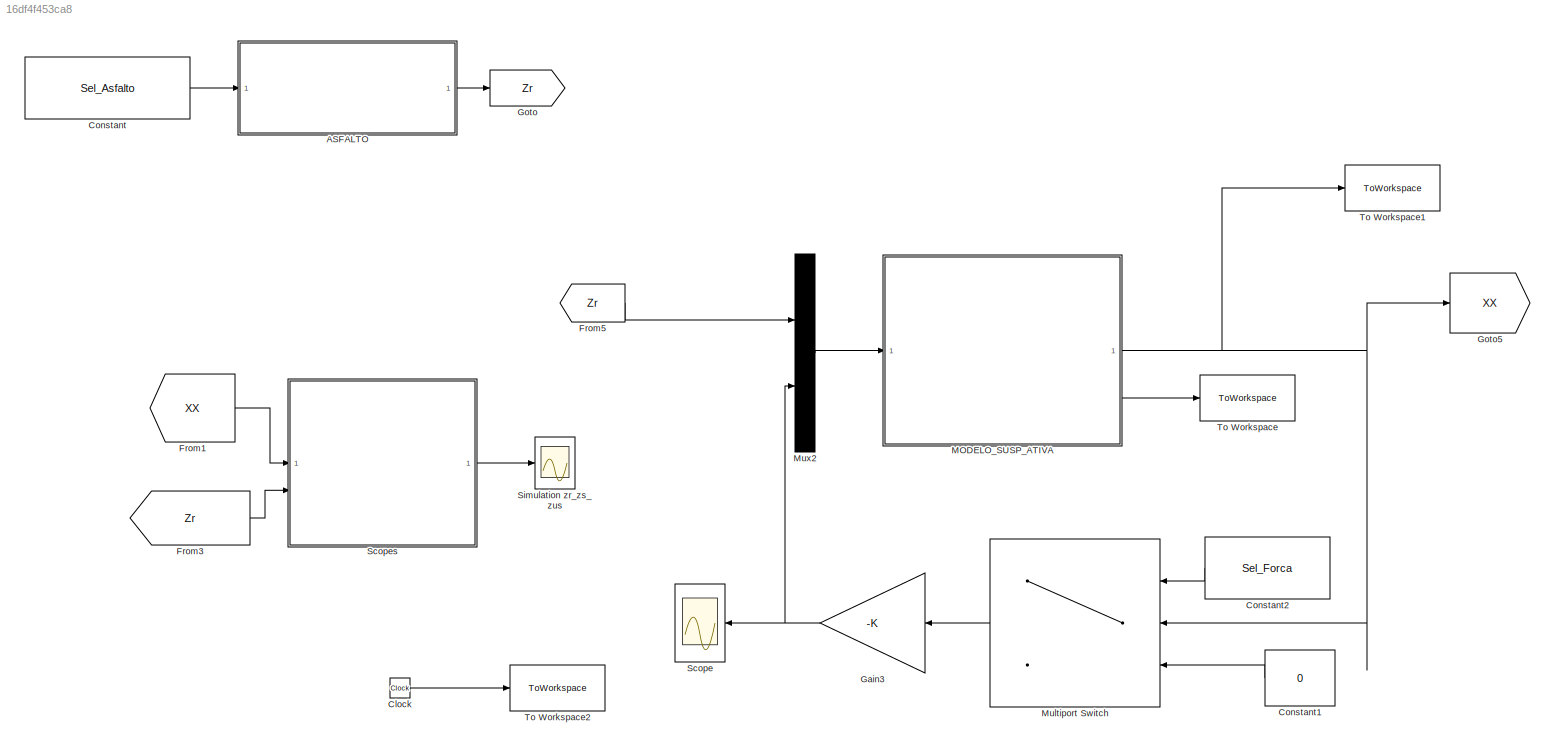
MODEL slx_16df4f453ca8
KIND model
CONFIG AbsTol = auto
CONFIG EnableMultiTasking = on
CONFIG FixedStep = auto
CONFIG MaxStep = auto
CONFIG MinStep = auto
CONFIG RelTol = 1e-3
CONFIG SampleTimeConstraint = Unconstrained
CONFIG SolverName = ode45
CONFIG StartTime = 0.0
CONFIG StopTime = 10.0
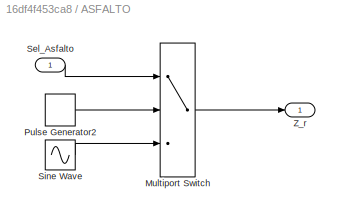
BLOCK [SubSystem] ASFALTO
BLOCK [MultiPortSwitch] ASFALTO/Multiport Switch
  DiagnosticForDefault = None
  InputSameDT = off
  Inputs = 2
  SaturateOnIntegerOverflow = off
BLOCK [DiscretePulseGenerator] ASFALTO/Pulse Generator2
  Amplitude = 0.02
  Period = 3
  PhaseDelay = .1
  PulseType = Time based
  PulseWidth = 50
BLOCK [Inport] ASFALTO/Sel_Asfalto
BLOCK [Sin] ASFALTO/Sine Wave
  Amplitude = 0.02
  Frequency = pi/0.3
  SampleTime = 0
BLOCK [Outport] ASFALTO/Z_r
BLOCK [Clock] Clock
BLOCK [Constant] Constant
  Value = Sel_Asfalto
BLOCK [Constant] Constant1
  NameLocation = top
  Value = 0
BLOCK [Constant] Constant2
  NameLocation = top
  Value = Sel_Forca
BLOCK [From] From1
  CloseFcn = tagdialog Close
  GotoTag = XX
BLOCK [From] From3
  CloseFcn = tagdialog Close
  GotoTag = Zr
BLOCK [From] From5
  GotoTag = Zr
BLOCK [Gain] Gain3
  Gain = -K
  Multiplication = Matrix(K*u) (u vector)
  NameLocation = top
BLOCK [Goto] Goto
  GotoTag = Zr
BLOCK [Goto] Goto5
  GotoTag = XX
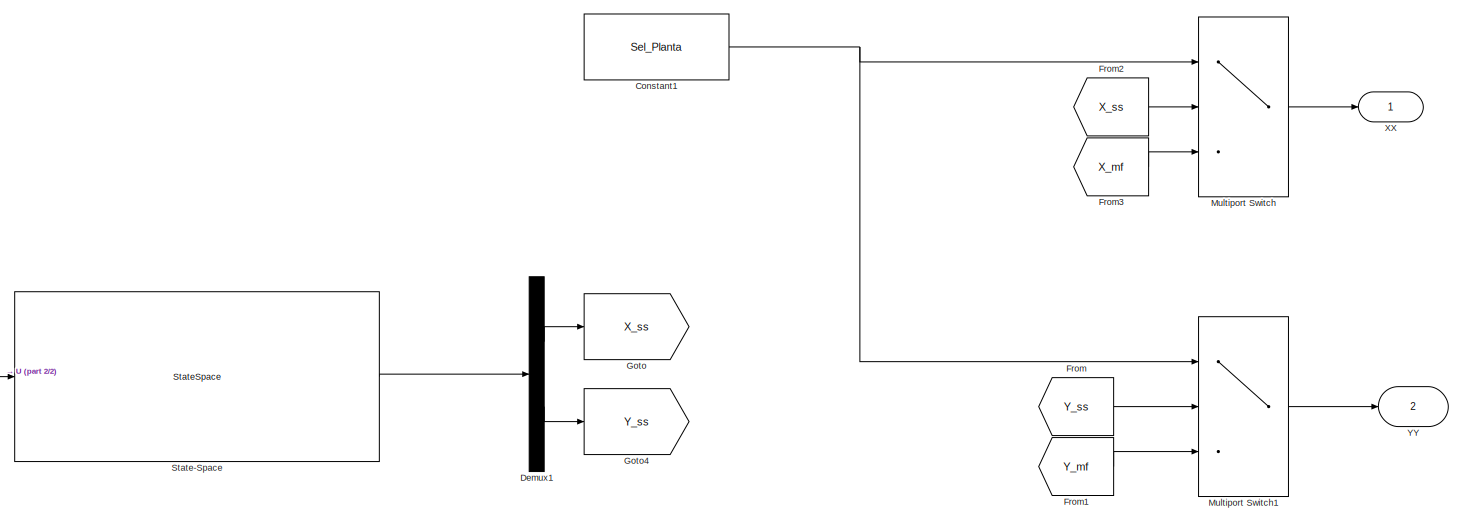
[diagram: MODELO_SUSP_ATIVA - part 1/2, full width, top band]
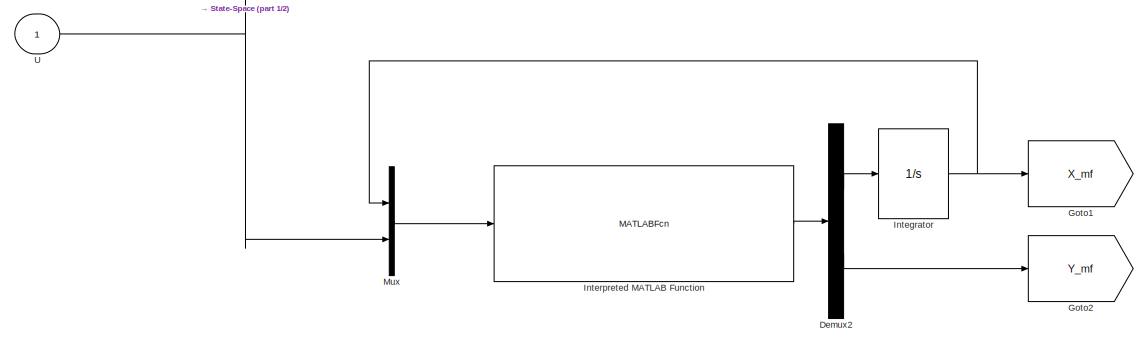
[diagram: MODELO_SUSP_ATIVA - part 2/2, bottom left region]
BLOCK [SubSystem] MODELO_SUSP_ATIVA
BLOCK [Constant] MODELO_SUSP_ATIVA/Constant1
  Value = Sel_Planta
BLOCK [Demux] MODELO_SUSP_ATIVA/Demux1
  Outputs = [4;2]
BLOCK [Demux] MODELO_SUSP_ATIVA/Demux2
  Outputs = [4;2]
BLOCK [From] MODELO_SUSP_ATIVA/From
  GotoTag = Y_ss
BLOCK [From] MODELO_SUSP_ATIVA/From1
  GotoTag = Y_mf
BLOCK [From] MODELO_SUSP_ATIVA/From2
  GotoTag = X_ss
BLOCK [From] MODELO_SUSP_ATIVA/From3
  GotoTag = X_mf
BLOCK [Goto] MODELO_SUSP_ATIVA/Goto
  GotoTag = X_ss
BLOCK [Goto] MODELO_SUSP_ATIVA/Goto1
  GotoTag = X_mf
BLOCK [Goto] MODELO_SUSP_ATIVA/Goto2
  GotoTag = Y_mf
BLOCK [Goto] MODELO_SUSP_ATIVA/Goto4
  GotoTag = Y_ss
BLOCK [Integrator] MODELO_SUSP_ATIVA/Integrator
BLOCK [MATLABFcn] MODELO_SUSP_ATIVA/Interpreted MATLAB Function
  MATLABFcn = Modelo_SA
  OutputDimensions = 6
BLOCK [MultiPortSwitch] MODELO_SUSP_ATIVA/Multiport Switch
  DiagnosticForDefault = None
  InputSameDT = off
  Inputs = 2
  SaturateOnIntegerOverflow = off
BLOCK [MultiPortSwitch] MODELO_SUSP_ATIVA/Multiport Switch1
  DiagnosticForDefault = None
  InputSameDT = off
  Inputs = 2
  SaturateOnIntegerOverflow = off
BLOCK [Mux] MODELO_SUSP_ATIVA/Mux
  DisplayOption = bar
  Inputs = [4;2]
BLOCK [StateSpace] MODELO_SUSP_ATIVA/State-Space
  A = A
  B = B
  C = C
  D = D
  InitialCondition = 0
BLOCK [Inport] MODELO_SUSP_ATIVA/U
BLOCK [Outport] MODELO_SUSP_ATIVA/XX
BLOCK [Outport] MODELO_SUSP_ATIVA/YY
  Port = 2
BLOCK [MultiPortSwitch] Multiport Switch
  DiagnosticForDefault = None
  InputSameDT = off
  Inputs = 2
  SaturateOnIntegerOverflow = off
BLOCK [Mux] Mux2
  DisplayOption = bar
  Inputs = 2
BLOCK [Scope] Scope
  Floating = off
  NameLocation = top
  NumInputPorts = 1
  ScopeSpecificationString = Simulink.scopes.TimeScopeBlockCfg('CurrentConfiguration', extmgr.ConfigurationSet(extmgr.Configuration('Core','General UI',true),extmgr.Configuration('Core','Source UI',true),extmgr.Configuration('Sources','WiredSimulink',true,'DataLogging',true,'DataLoggingVariableName','forca','DataLoggingSaveFormat','Array','DataLoggingDecimation','1','DataLoggingDecimateData',true),extmgr.Configuration('Visual...<+1660ch>
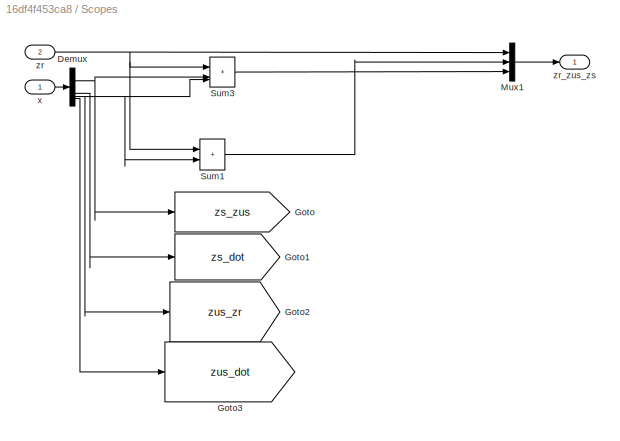
BLOCK [SubSystem] Scopes
BLOCK [Demux] Scopes/Demux
BLOCK [Goto] Scopes/Goto
  GotoTag = zs_zus
BLOCK [Goto] Scopes/Goto1
  GotoTag = zs_dot
BLOCK [Goto] Scopes/Goto2
  GotoTag = zus_zr
BLOCK [Goto] Scopes/Goto3
  GotoTag = zus_dot
BLOCK [Mux] Scopes/Mux1
  DisplayOption = bar
  Inputs = 3
BLOCK [Sum] Scopes/Sum1
  IconShape = rectangular
  InputSameDT = on
  Inputs = 2
  OutDataTypeStr = Inherit: Same as first input
  SaturateOnIntegerOverflow = on
BLOCK [Sum] Scopes/Sum3
  IconShape = rectangular
  InputSameDT = on
  Inputs = 3
  OutDataTypeStr = Inherit: Same as first input
  SaturateOnIntegerOverflow = on
BLOCK [Inport] Scopes/x
BLOCK [Inport] Scopes/zr
  Port = 2
BLOCK [Outport] Scopes/zr_zus_zs
BLOCK [Scope] Simulation zr_zs_zus
  Floating = off
  NumInputPorts = 1
  ScopeSpecificationString = Simulink.scopes.TimeScopeBlockCfg('CurrentConfiguration', extmgr.ConfigurationSet(extmgr.Configuration('Core','General UI',true),extmgr.Configuration('Core','Source UI',true),extmgr.Configuration('Sources','WiredSimulink',true,'DataLogging',true,'DataLoggingVariableName','Z','DataLoggingMaxPoints','300000','DataLoggingSaveFormat','Array','DataLoggingDecimation','1','DataLoggingDecimateData',true),...<+1706ch>
BLOCK [ToWorkspace] To Workspace
  MaxDataPoints = inf
  SampleTime = -1
  VariableName = YY
BLOCK [ToWorkspace] To Workspace1
  MaxDataPoints = inf
  SampleTime = -1
  VariableName = XX
BLOCK [ToWorkspace] To Workspace2
  MaxDataPoints = inf
  SampleTime = -1
  VariableName = tempo
LINE ASFALTO/Multiport Switch:1 -> ASFALTO/Z_r:1
LINE ASFALTO/Pulse Generator2:1 -> ASFALTO/Multiport Switch:2
LINE ASFALTO/Sel_Asfalto:1 -> ASFALTO/Multiport Switch:1
LINE ASFALTO/Sine Wave:1 -> ASFALTO/Multiport Switch:3
LINE ASFALTO:1 -> Goto:1
LINE Clock:1 -> To Workspace2:1
LINE Constant1:1 -> Multiport Switch:3
LINE Constant2:1 -> Multiport Switch:1
LINE Constant:1 -> ASFALTO:1
LINE From1:1 -> Scopes:1
LINE From3:1 -> Scopes:2
LINE From5:1 -> Mux2:1
NET Gain3:1 -> Mux2:2, Scope:1
NET MODELO_SUSP_ATIVA/Constant1:1 -> MODELO_SUSP_ATIVA/Multiport Switch1:1, MODELO_SUSP_ATIVA/Multiport Switch:1
LINE MODELO_SUSP_ATIVA/Demux1:1 -> MODELO_SUSP_ATIVA/Goto:1
LINE MODELO_SUSP_ATIVA/Demux1:2 -> MODELO_SUSP_ATIVA/Goto4:1
LINE MODELO_SUSP_ATIVA/Demux2:1 -> MODELO_SUSP_ATIVA/Integrator:1
LINE MODELO_SUSP_ATIVA/Demux2:2 -> MODELO_SUSP_ATIVA/Goto2:1
LINE MODELO_SUSP_ATIVA/From1:1 -> MODELO_SUSP_ATIVA/Multiport Switch1:3
LINE MODELO_SUSP_ATIVA/From2:1 -> MODELO_SUSP_ATIVA/Multiport Switch:2
LINE MODELO_SUSP_ATIVA/From3:1 -> MODELO_SUSP_ATIVA/Multiport Switch:3
LINE MODELO_SUSP_ATIVA/From:1 -> MODELO_SUSP_ATIVA/Multiport Switch1:2
NET MODELO_SUSP_ATIVA/Integrator:1 -> MODELO_SUSP_ATIVA/Goto1:1, MODELO_SUSP_ATIVA/Mux:1
LINE MODELO_SUSP_ATIVA/Interpreted MATLAB Function:1 -> MODELO_SUSP_ATIVA/Demux2:1
LINE MODELO_SUSP_ATIVA/Multiport Switch1:1 -> MODELO_SUSP_ATIVA/YY:1
LINE MODELO_SUSP_ATIVA/Multiport Switch:1 -> MODELO_SUSP_ATIVA/XX:1
LINE MODELO_SUSP_ATIVA/Mux:1 -> MODELO_SUSP_ATIVA/Interpreted MATLAB Function:1
LINE MODELO_SUSP_ATIVA/State-Space:1 -> MODELO_SUSP_ATIVA/Demux1:1
NET MODELO_SUSP_ATIVA/U:1 -> MODELO_SUSP_ATIVA/Mux:2, MODELO_SUSP_ATIVA/State-Space:1
NET MODELO_SUSP_ATIVA:1 -> Goto5:1, Multiport Switch:2, To Workspace1:1
LINE MODELO_SUSP_ATIVA:2 -> To Workspace:1
LINE Multiport Switch:1 -> Gain3:1
LINE Mux2:1 -> MODELO_SUSP_ATIVA:1
NET Scopes/Demux:1 -> Scopes/Goto:1, Scopes/Sum3:2
LINE Scopes/Demux:2 -> Scopes/Goto1:1
NET Scopes/Demux:3 -> Scopes/Goto2:1, Scopes/Sum1:2, Scopes/Sum3:3
LINE Scopes/Demux:4 -> Scopes/Goto3:1
LINE Scopes/Mux1:1 -> Scopes/zr_zus_zs:1
LINE Scopes/Sum1:1 -> Scopes/Mux1:2
LINE Scopes/Sum3:1 -> Scopes/Mux1:3
LINE Scopes/x:1 -> Scopes/Demux:1
NET Scopes/zr:1 -> Scopes/Mux1:1, Scopes/Sum1:1, Scopes/Sum3:1
LINE Scopes:1 -> Simulation zr_zs_zus:1
note: NET lines group one-source signal fan-out (src -> all destinations, sorted); 1:1 wires keep LINE
